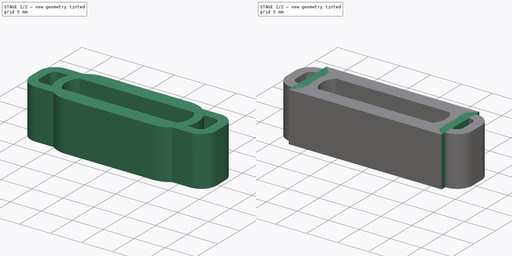
[diagram: build sequence overview — one tinted view per stage of 2, left to right]
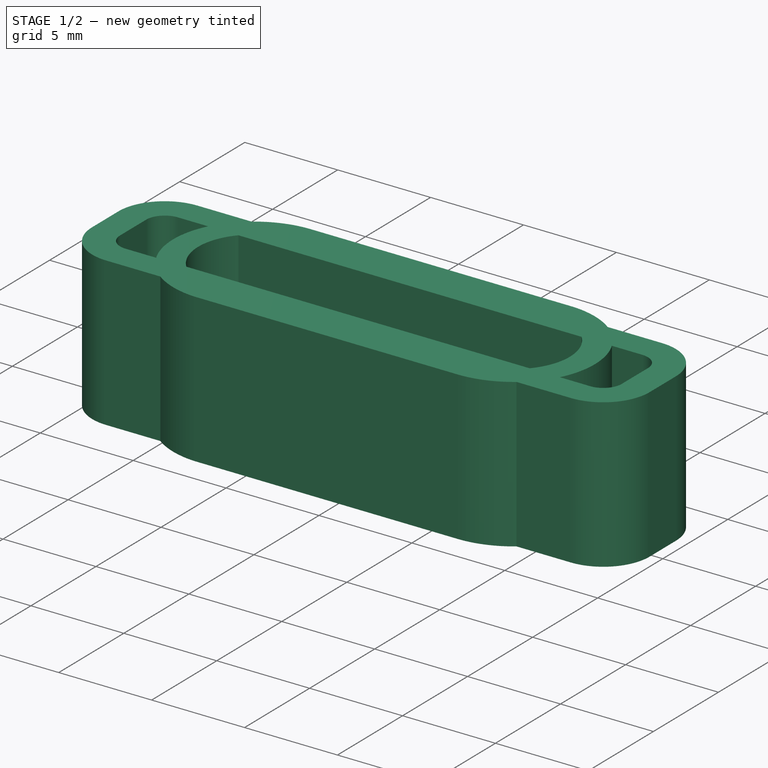
[diagram: stage 1 of 2 — iso view after this stage's code; geometry added in this stage tinted green]
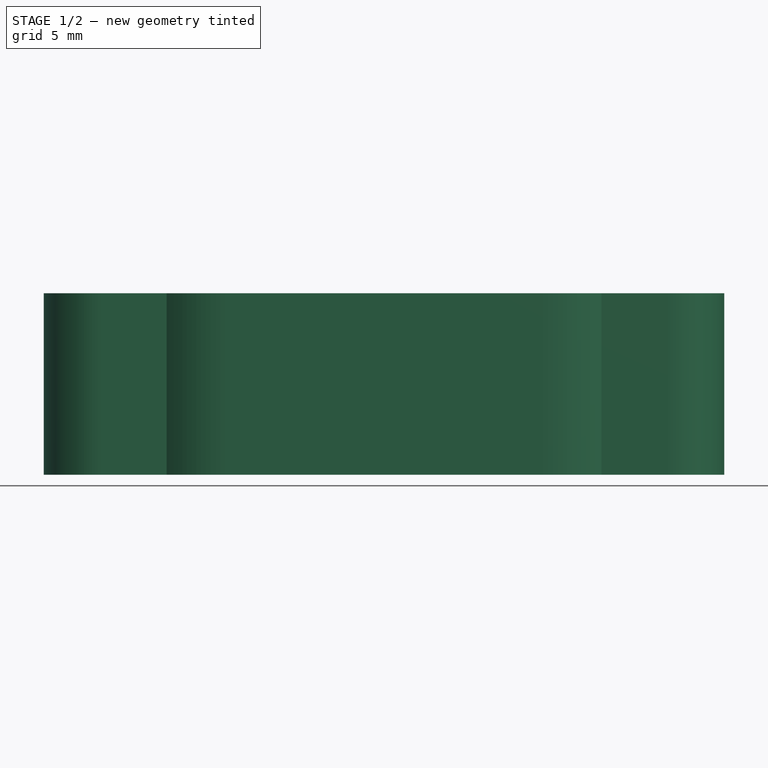
[diagram: stage 1 of 2 — front view after this stage's code; geometry added in this stage tinted green]
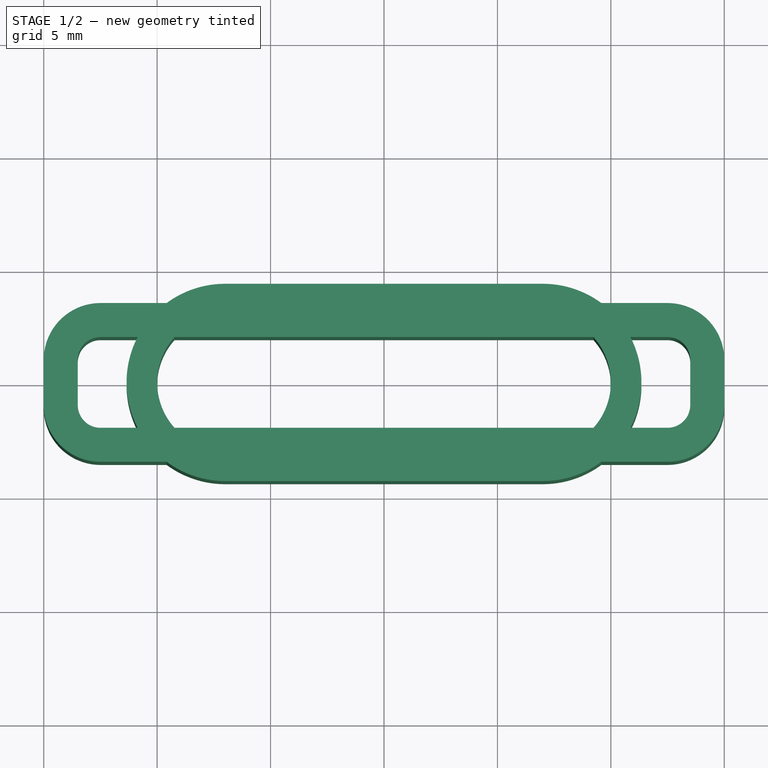
[diagram: stage 1 of 2 — top view after this stage's code; geometry added in this stage tinted green]
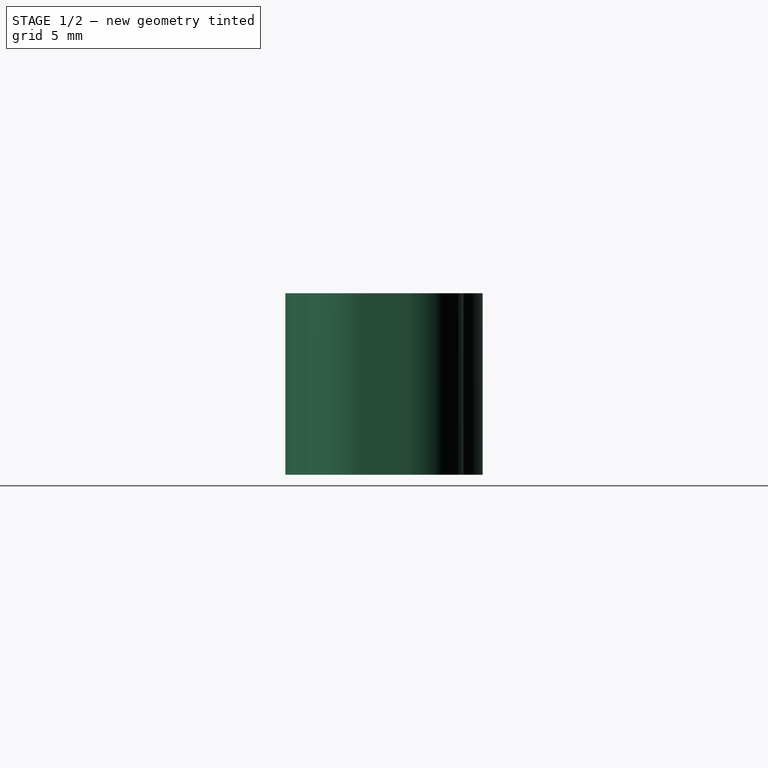
[diagram: stage 1 of 2 — right view after this stage's code; geometry added in this stage tinted green]
FCSTD DOCUMENT  (FreeCAD 2022.709R26244 +5001 (Git))
Label: watch strap loop
License: All rights reserved
LicenseURL: http://en.wikipedia.org/wiki/All_rights_reserved
objects: Sketcher::SketchObject×3, PartDesign::Pad×3, PartDesign::Body×3
note: 15 computed .brp shape members not serialized (recipe doc carries the construction recipe); baked Part::Feature solids carry a one-line shape summary decoded from their .brp

FEATURE [PartDesign::Body] Body
  AutoGroupSolids = false
  ClaimAllChildren = false
  ExportMode = 0
  Group = -> [Sketch,Pad]
  Origin = -> Origin
  Tip = -> Pad
  TreeRank = 0
  _ExportChildren = -> [Pad]
  _GroupVersion = 1
FEATURE [Sketcher::SketchObject] Sketch001
  ArcFitTolerance = 0
  AttachmentSupport = -> [XY_Plane001]
  FullyConstrained = true
  MapMode = 5
  Support = -> [XY_Plane001]
  TreeRank = 0
  expr: Constraints[15] = 0.45 * 3
  expr: Constraints[8] = 20mm - 6mm
  sketch-geometry (8):
    g0: ArcOfCircle CenterX=-7 CenterY=-2.7e-15 CenterZ=0 NormalX=0 NormalY=0 NormalZ=1 AngleXU=0 Radius=3 StartAngle=1.5708 EndAngle=4.71239
    g1: ArcOfCircle CenterX=7 CenterY=2.7e-15 CenterZ=0 NormalX=0 NormalY=0 NormalZ=1 AngleXU=0 Radius=3 StartAngle=4.71239 EndAngle=7.85398
    g2: LineSegment StartX=-7 StartY=-3 StartZ=0 EndX=7 EndY=-3 EndZ=0
    g3: LineSegment StartX=-7 StartY=3 StartZ=0 EndX=7 EndY=3 EndZ=0
    g4: ArcOfCircle CenterX=-7 CenterY=-2.6e-15 CenterZ=0 NormalX=0 NormalY=0 NormalZ=1 AngleXU=0 Radius=4.35 StartAngle=1.5708 EndAngle=4.71239
    g5: ArcOfCircle CenterX=7 CenterY=2.7e-15 CenterZ=0 NormalX=0 NormalY=0 NormalZ=1 AngleXU=0 Radius=4.35 StartAngle=4.71239 EndAngle=7.85398
    g6: LineSegment StartX=-7 StartY=-4.35 StartZ=0 EndX=7 EndY=-4.35 EndZ=0
    g7: LineSegment StartX=-7 StartY=4.35 StartZ=0 EndX=7 EndY=4.35 EndZ=0
  constraints (17):
    c: Tangent(g0,g3) = 1.5708
    c: Tangent(g0,g2) = -1.5708
    c: Tangent(g2,g1) = -1.5708
    c: Tangent(g3,g1) = 1.5708
    c: Horizontal(g2)
    c: Equal(g0,g1)
    c: Symmetric(g1,g0,g-1)
    c: Radius(g1) = 3
    c: DistanceX(g0,g1) = 14
    c: Tangent(g4,g7) = 1.5708
    c: Tangent(g4,g6) = -1.5708
    c: Tangent(g6,g5) = -1.5708
    c: Tangent(g7,g5) = 1.5708
    c: Horizontal(g6)
    c: Symmetric(g5,g4,g-1)
    c: DistanceY(g1,g5) = 1.35
    c: Coincident(g5,g1)
FEATURE [PartDesign::Pad] Pad001
  AddSubType = 0
  CheckUpToFaceLimits = true
  ClaimChildren = false
  Direction = (1,1,1)
  Fit = 0
  FitJoin = 0
  InnerFit = 0
  InnerFitJoin = 0
  InnerTaperAngle = 0
  InnerTaperAngleRev = 0
  Length = 8
  Length2 = 100
  Linearize = true
  NewSolid = false
  Profile = -> Sketch001
  Refine = true
  Suppress = false
  TreeRank = 0
  Type = 0
  _ProfileBasedVersion = 1
FEATURE [PartDesign::Body] Body001
  AutoGroupSolids = false
  ClaimAllChildren = false
  ExportMode = 0
  Group = -> [Sketch001,Pad001]
  Origin = -> Origin001
  Tip = -> Pad001
  TreeRank = 0
  _ExportChildren = -> [Pad001]
  _GroupVersion = 1
FEATURE [Sketcher::SketchObject] Sketch002
  ArcFitTolerance = 1e-06
  AttachmentSupport = -> [XY_Plane002]
  FullyConstrained = true
  MapMode = 5
  Support = -> [XY_Plane002]
  TreeRank = 13
  sketch-geometry (20):
    g0: ArcOfCircle CenterX=-12.5 CenterY=1 CenterZ=0 NormalX=0 NormalY=0 NormalZ=1 AngleXU=0 Radius=1 StartAngle=1.5708 EndAngle=3.14159
    g1: LineSegment StartX=-12.5 StartY=2 StartZ=0 EndX=12.5 EndY=2 EndZ=0
    g2: ArcOfCircle CenterX=12.5 CenterY=1 CenterZ=0 NormalX=0 NormalY=0 NormalZ=1 AngleXU=0 Radius=1 StartAngle=1e-16 EndAngle=1.5708
    g3: LineSegment StartX=13.5 StartY=1 StartZ=0 EndX=13.5 EndY=-1 EndZ=0
    g4: ArcOfCircle CenterX=12.5 CenterY=-1 CenterZ=0 NormalX=0 NormalY=0 NormalZ=1 AngleXU=0 Radius=1 StartAngle=4.71239 EndAngle=6.28319
    g5: LineSegment StartX=12.5 StartY=-2 StartZ=0 EndX=-12.5 EndY=-2 EndZ=0
    g6: ArcOfCircle CenterX=-12.5 CenterY=-1 CenterZ=0 NormalX=0 NormalY=0 NormalZ=1 AngleXU=0 Radius=1 StartAngle=3.14159 EndAngle=4.71239
    g7: LineSegment StartX=-13.5 StartY=-1 StartZ=0 EndX=-13.5 EndY=1 EndZ=0
    g8: GeomPoint [constr] X=-13.5 Y=2 Z=0
    g9: GeomPoint [constr] X=13.5 Y=-2 Z=0
    g10: ArcOfCircle CenterX=-12.5 CenterY=1 CenterZ=0 NormalX=0 NormalY=0 NormalZ=1 AngleXU=0 Radius=2.5 StartAngle=1.5708 EndAngle=3.14159
    g11: LineSegment StartX=-12.5 StartY=3.5 StartZ=0 EndX=12.5 EndY=3.5 EndZ=0
    g12: ArcOfCircle CenterX=12.5 CenterY=1 CenterZ=0 NormalX=0 NormalY=0 NormalZ=1 AngleXU=0 Radius=2.5 StartAngle=1e-16 EndAngle=1.5708
    g13: LineSegment StartX=15 StartY=1 StartZ=0 EndX=15 EndY=-1 EndZ=0
    g14: ArcOfCircle CenterX=12.5 CenterY=-1 CenterZ=0 NormalX=0 NormalY=0 NormalZ=1 AngleXU=0 Radius=2.5 StartAngle=4.71239 EndAngle=6.28319
    g15: LineSegment StartX=12.5 StartY=-3.5 StartZ=0 EndX=-12.5 EndY=-3.5 EndZ=0
    g16: ArcOfCircle CenterX=-12.5 CenterY=-1 CenterZ=0 NormalX=0 NormalY=0 NormalZ=1 AngleXU=0 Radius=2.5 StartAngle=3.14159 EndAngle=4.71239
    g17: LineSegment StartX=-15 StartY=-1 StartZ=0 EndX=-15 EndY=1 EndZ=0
    g18: GeomPoint [constr] X=-15 Y=3.5 Z=0
    g19: GeomPoint [constr] X=15 Y=-3.5 Z=0
  constraints (45):
    c: Tangent(g0,g1) = 1.5708
    c: Tangent(g1,g2) = 1.5708
    c: Tangent(g2,g3) = 1.5708
    c: Tangent(g3,g4) = 1.5708
    c: Tangent(g4,g5) = 1.5708
    c: Tangent(g5,g6) = 1.5708
    c: Tangent(g6,g7) = 1.5708
    c: Tangent(g7,g0) = 1.5708
    c: Horizontal(g1)
    c: Horizontal(g5)
    c: Vertical(g3)
    c: Vertical(g7)
    c: Equal(g0,g2)
    c: Equal(g2,g4)
    c: Equal(g4,g6)
    c: PointOnObject(g8,g1)
    c: PointOnObject(g8,g7)
    c: PointOnObject(g9,g3)
    c: PointOnObject(g9,g5)
    c: Symmetric(g0,g4,g-1)
    c: DistanceY(g4,g1) = 4
    c: DistanceX(g6,g3) = 27
    c: Radius(g2) = 1
    c: Tangent(g10,g11) = 1.5708
    c: Tangent(g11,g12) = 1.5708
    c: Tangent(g12,g13) = 1.5708
    c: Tangent(g13,g14) = 1.5708
    c: Tangent(g14,g15) = 1.5708
    c: Tangent(g15,g16) = 1.5708
    c: Tangent(g16,g17) = 1.5708
    c: Tangent(g17,g10) = 1.5708
    c: Horizontal(g11)
    c: Horizontal(g15)
    c: Vertical(g13)
    c: Vertical(g17)
    c: Equal(g10,g12)
    c: Equal(g12,g14)
    c: Equal(g14,g16)
    c: PointOnObject(g18,g11)
    c: PointOnObject(g18,g17)
    c: PointOnObject(g19,g13)
    c: PointOnObject(g19,g15)
    c: DistanceY(g15,g10) = 7
    c: Symmetric(g14,g10,g-1)
    c: Coincident(g4,g14)
FEATURE [PartDesign::Pad] Pad002
  AddSubType = 0
  AlongSketchNormal = false
  CheckUpToFaceLimits = true
  ClaimChildren = false
  Direction = (0,0,1)
  Fit = 0
  FitJoin = 0
  InnerFit = 0
  InnerFitJoin = 0
  InnerTaperAngle = 0
  InnerTaperAngleRev = 0
  Length = 8
  Length2 = 100
  Linearize = true
  NewSolid = false
  Profile = -> Sketch002
  Refine = true
  Suppress = false
  TreeRank = 14
  Type = 0
  _ProfileBasedVersion = 1
FEATURE [PartDesign::Body] Body002
  AutoGroupSolids = false
  ClaimAllChildren = false
  ExportMode = 0
  Group = -> [Sketch002,Pad002]
  Origin = -> Origin002
  Tip = -> Pad002
  TreeRank = 12
  _ExportChildren = -> [Pad002]
  _GroupVersion = 1
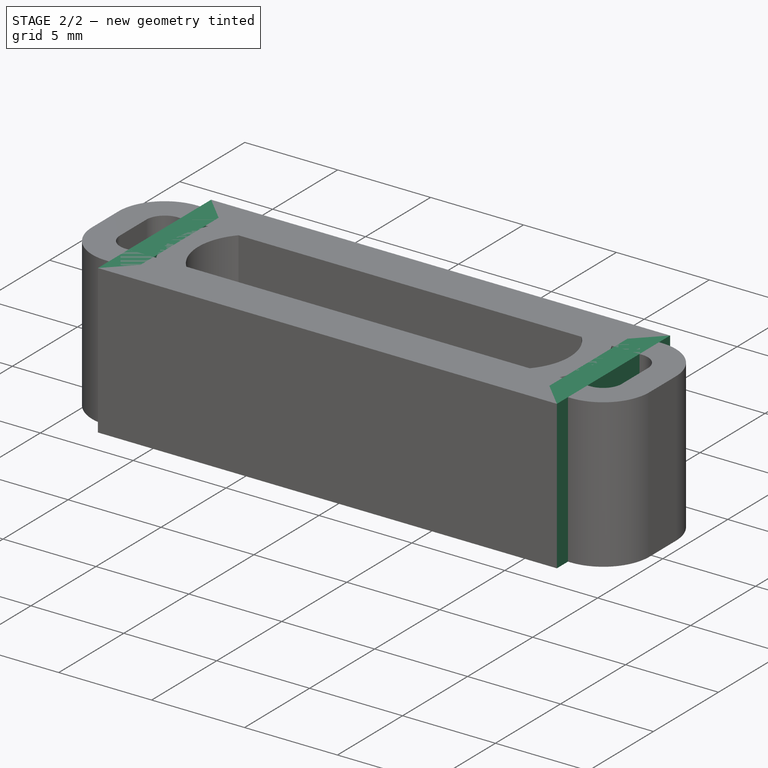
[diagram: stage 2 of 2 — iso view after this stage's code; geometry added in this stage tinted green]
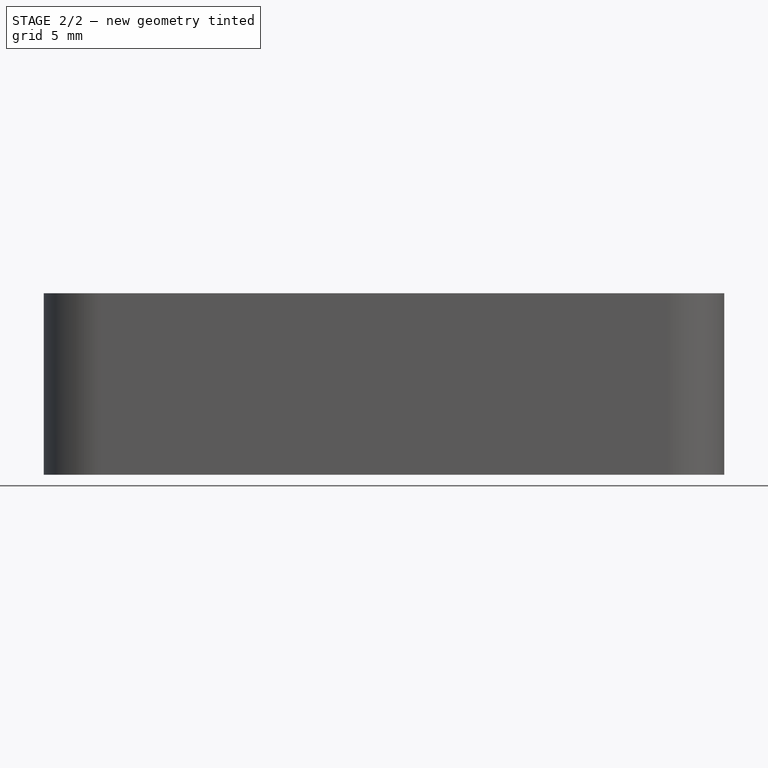
[diagram: stage 2 of 2 — front view after this stage's code; geometry added in this stage tinted green]
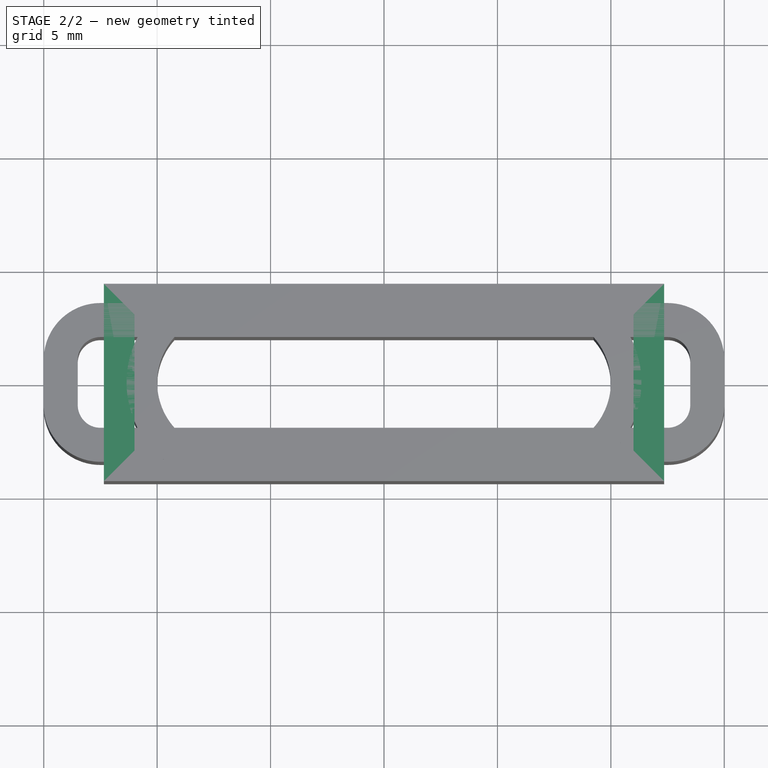
[diagram: stage 2 of 2 — top view after this stage's code; geometry added in this stage tinted green]
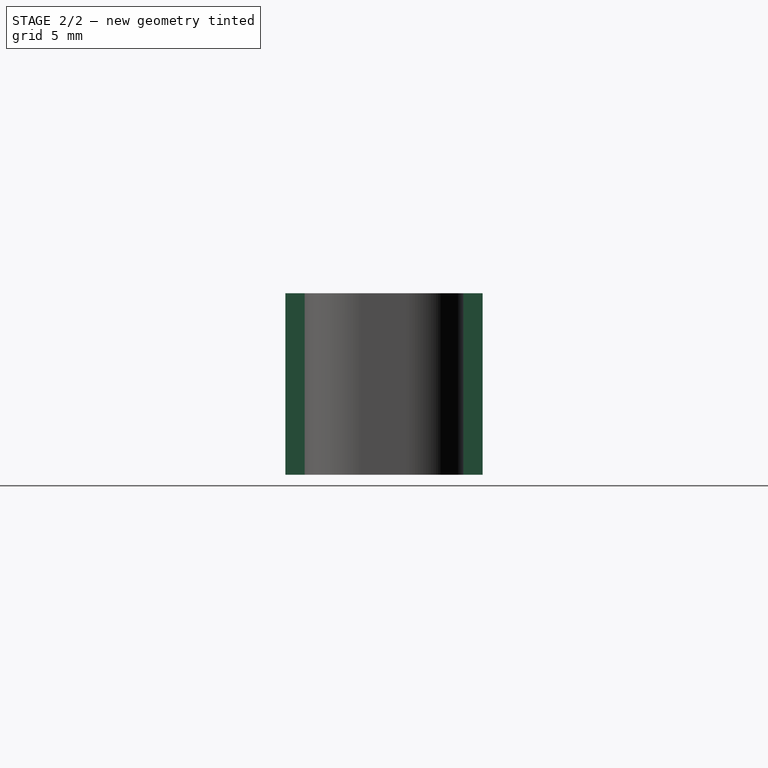
[diagram: stage 2 of 2 — right view after this stage's code; geometry added in this stage tinted green]
FEATURE [Sketcher::SketchObject] Sketch
  ArcFitTolerance = 0
  AttachmentSupport = -> [XY_Plane]
  FullyConstrained = true
  MapMode = 5
  Support = -> [XY_Plane]
  TreeRank = 0
  expr: Constraints[18] = 0.45mm * 3
  expr: Constraints[19] = 0.45mm * 3
  sketch-geometry (8):
    g0: LineSegment StartX=-11 StartY=3 StartZ=0 EndX=11 EndY=3 EndZ=0
    g1: LineSegment StartX=11 StartY=3 StartZ=0 EndX=11 EndY=-3 EndZ=0
    g2: LineSegment StartX=11 StartY=-3 StartZ=0 EndX=-11 EndY=-3 EndZ=0
    g3: LineSegment StartX=-11 StartY=-3 StartZ=0 EndX=-11 EndY=3 EndZ=0
    g4: LineSegment StartX=-12.35 StartY=4.35 StartZ=0 EndX=12.35 EndY=4.35 EndZ=0
    g5: LineSegment StartX=12.35 StartY=4.35 StartZ=0 EndX=12.35 EndY=-4.35 EndZ=0
    g6: LineSegment StartX=12.35 StartY=-4.35 StartZ=0 EndX=-12.35 EndY=-4.35 EndZ=0
    g7: LineSegment StartX=-12.35 StartY=-4.35 StartZ=0 EndX=-12.35 EndY=4.35 EndZ=0
  constraints (22):
    c: Coincident(g0,g1)
    c: Coincident(g1,g2)
    c: Coincident(g2,g3)
    c: Coincident(g3,g0)
    c: Horizontal(g0)
    c: Horizontal(g2)
    c: Vertical(g1)
    c: Vertical(g3)
    c: Coincident(g4,g5)
    c: Coincident(g5,g6)
    c: Coincident(g6,g7)
    c: Coincident(g7,g4)
    c: Horizontal(g4)
    c: Horizontal(g6)
    c: Vertical(g5)
    c: Vertical(g7)
    c: Symmetric(g1,g0,g-1)
    c: Symmetric(g4,g5,g-1)
    c: DistanceY(g0,g4) = 1.35
    c: DistanceX(g4,g0) = 1.35
    c: DistanceX(g0,g0) = 22
    c: DistanceY(g1,g1) = 6
FEATURE [PartDesign::Pad] Pad
  AddSubType = 0
  CheckUpToFaceLimits = true
  ClaimChildren = false
  Direction = (1,1,1)
  Fit = 0
  FitJoin = 0
  InnerFit = 0
  InnerFitJoin = 0
  InnerTaperAngle = 0
  InnerTaperAngleRev = 0
  Length = 8
  Length2 = 100
  Linearize = true
  NewSolid = false
  Profile = -> Sketch
  Refine = true
  Suppress = false
  TreeRank = 0
  Type = 0
  _ProfileBasedVersion = 1
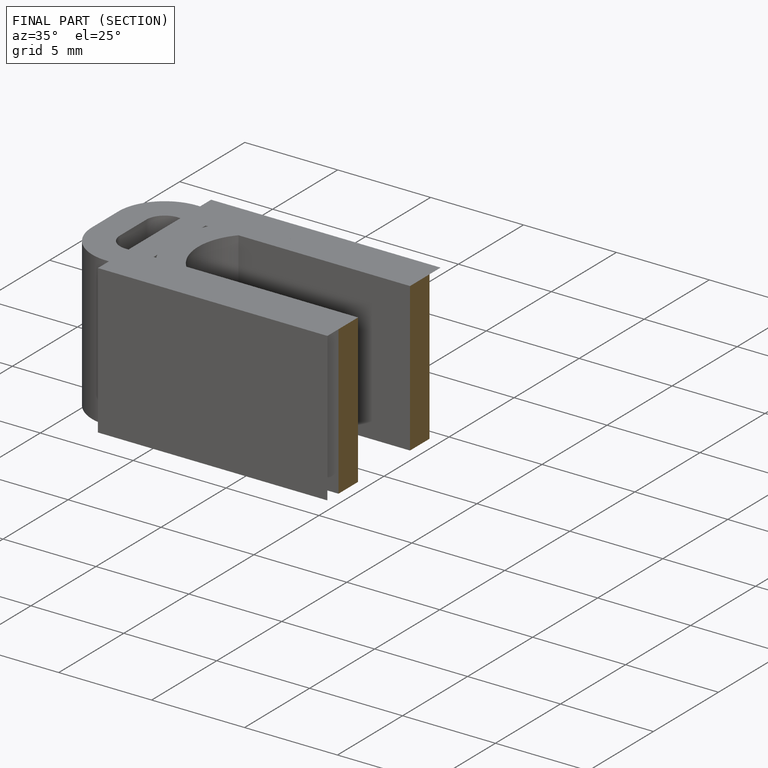
[diagram: finished part — half-section view (interior)]
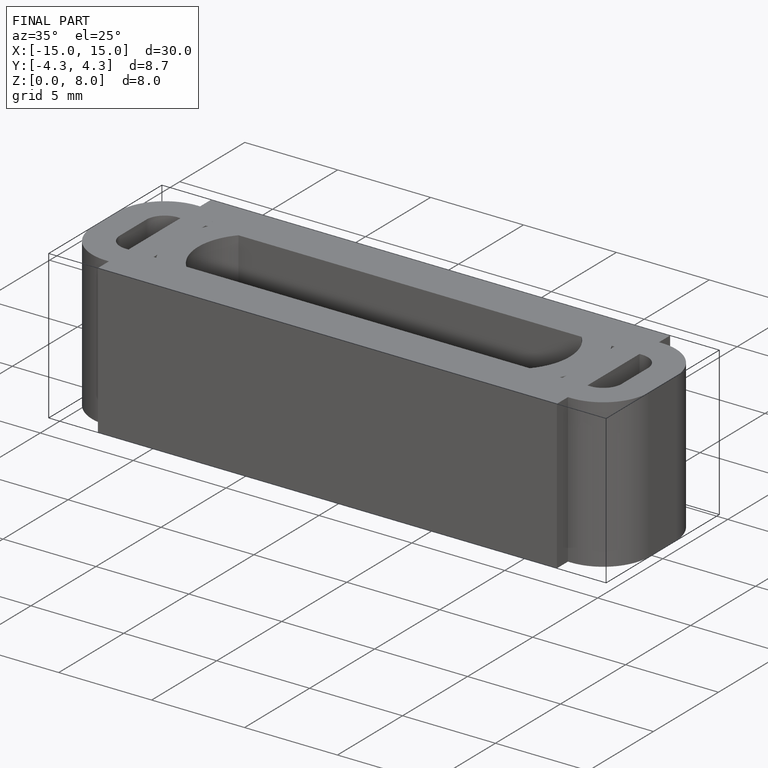
[diagram: finished part — iso view with bounding-box wireframe]
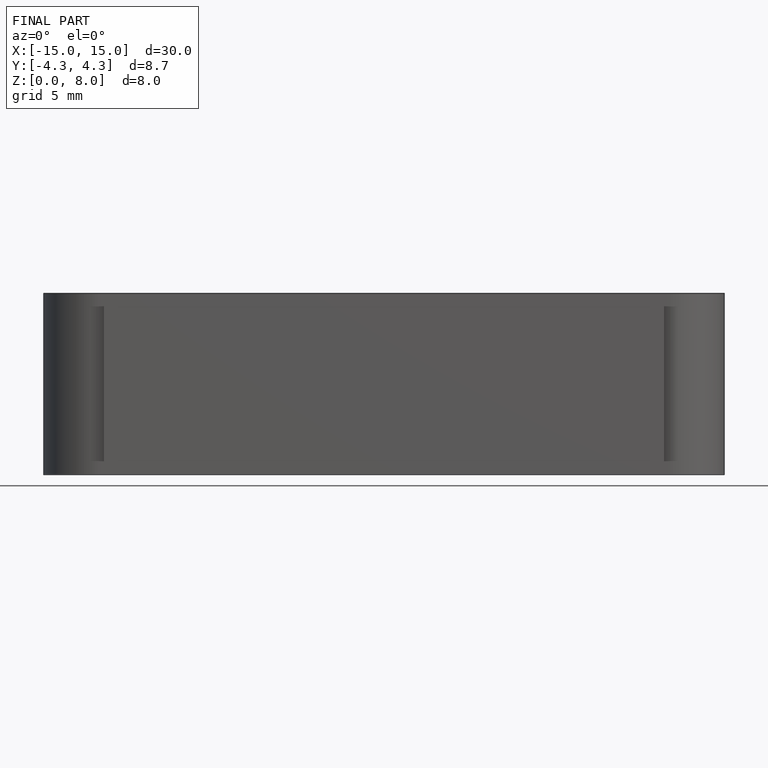
[diagram: finished part — front view with bounding-box wireframe]
